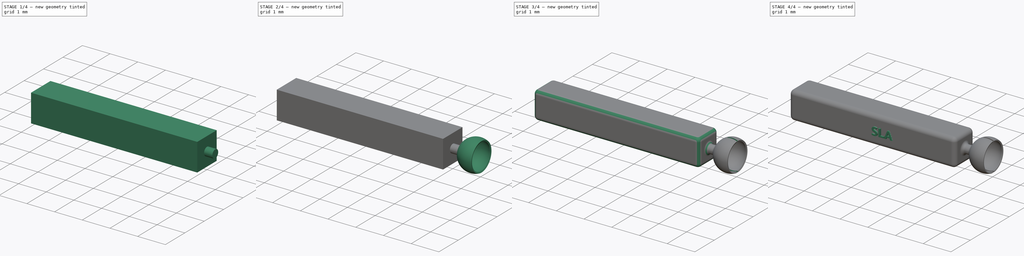
[diagram: build sequence overview — one tinted view per stage of 4, left to right]
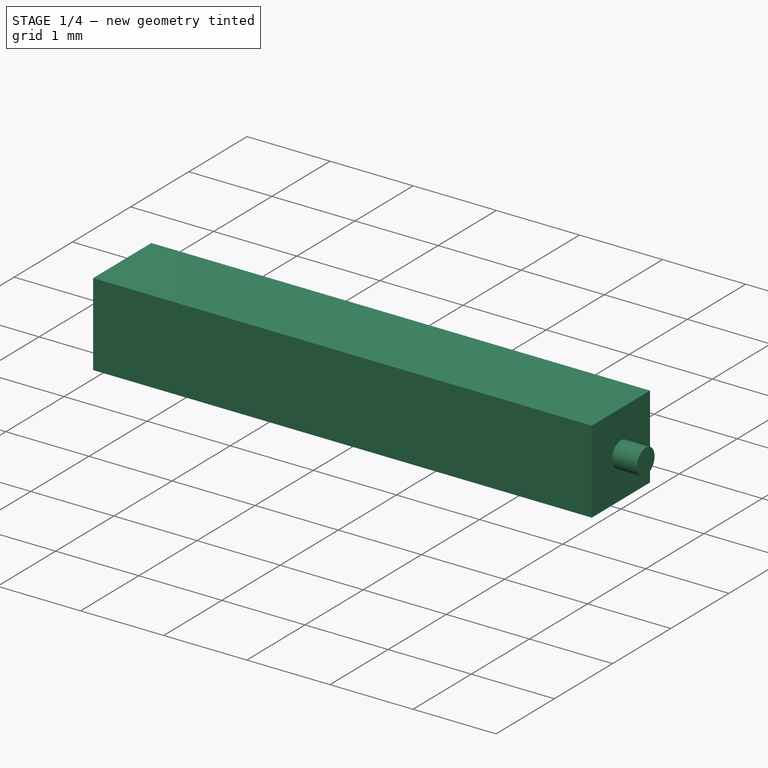
[diagram: stage 1 of 4 — iso view after this stage's code; geometry added in this stage tinted green]
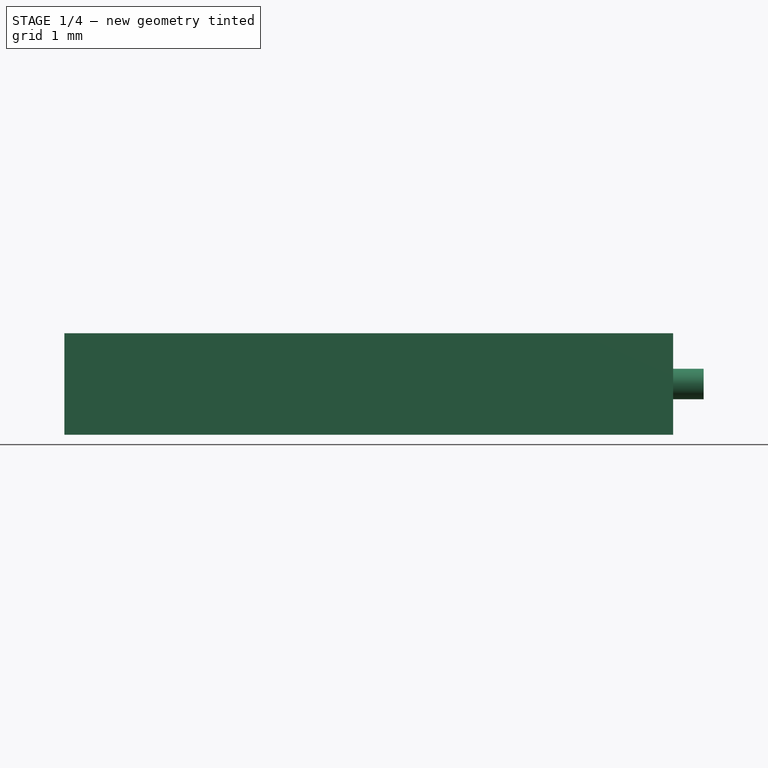
[diagram: stage 1 of 4 — front view after this stage's code; geometry added in this stage tinted green]
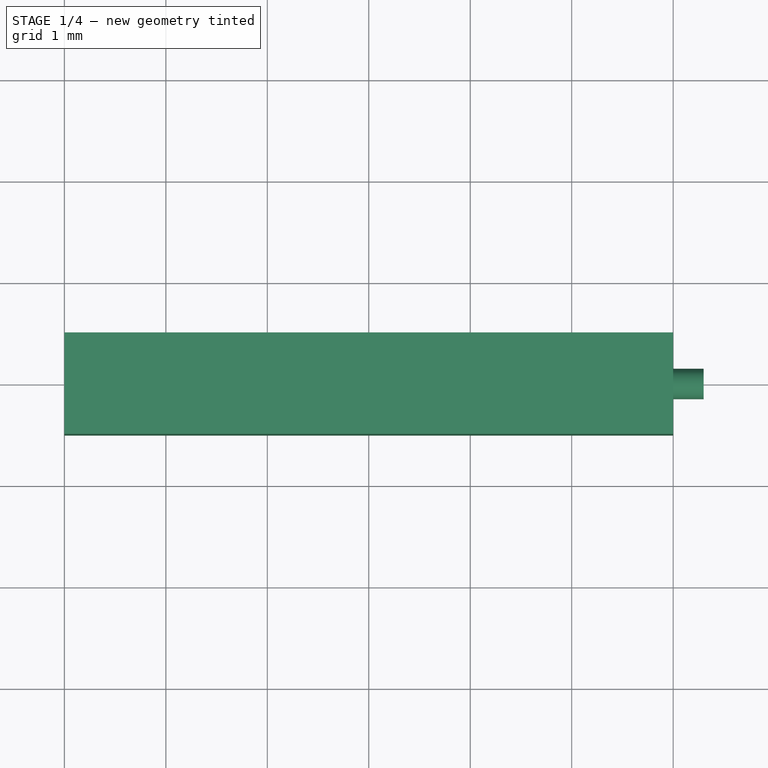
[diagram: stage 1 of 4 — top view after this stage's code; geometry added in this stage tinted green]
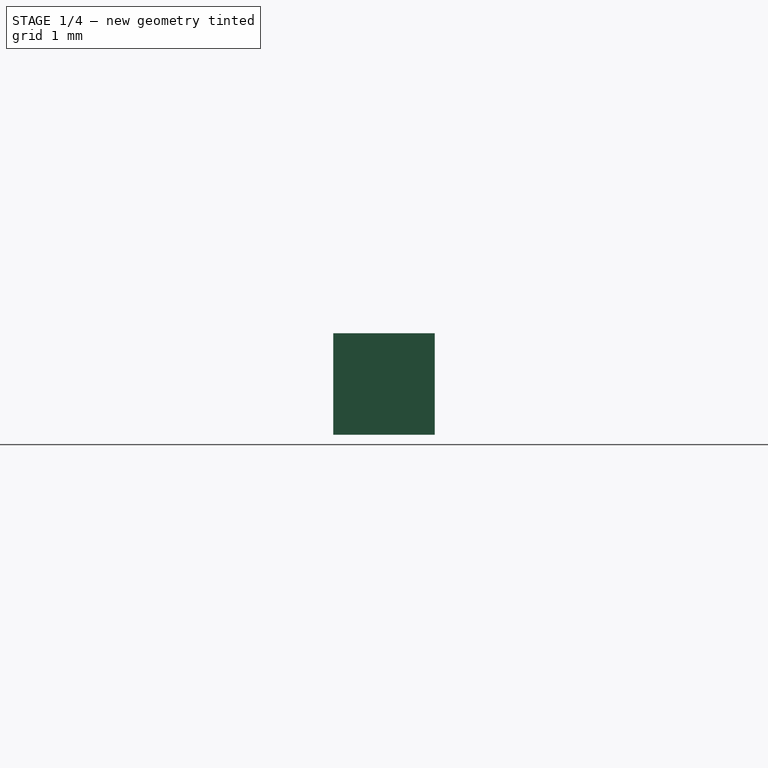
[diagram: stage 1 of 4 — right view after this stage's code; geometry added in this stage tinted green]
FCSTD DOCUMENT  (FreeCAD 0.20R29177 (Git))
Label: sla
License: All rights reserved
LicenseURL: http://en.wikipedia.org/wiki/All_rights_reserved
objects: Sketcher::SketchObject×5, PartDesign::Pad×3, PartDesign::Fillet×3, PartDesign::Plane×2, PartDesign::Line×2, Spreadsheet::Sheet×1, PartDesign::Revolution×1, PartDesign::Groove×1, PartDesign::Pocket×1, Part::Part2DObjectPython×1, PartDesign::Body×1
note: 29 computed .brp shape members not serialized (recipe doc carries the construction recipe); baked Part::Feature solids carry a one-line shape summary decoded from their .brp

FEATURE [Spreadsheet::Sheet] Spreadsheet
  cells = A2=Design Parameters; A3=RefLength; B3(RefLength)==1mm; A4=Length; B4(Length)==6 * RefLength; A5=Width; B5(Width)==RefLength; A6=Height; B6(Height)==RefLength; A7=BallJointDiam; B7(BallJointDiam)==1 * RefLength; A8=BallJointDiamMargin; B8(BallJointDiamMargin)==0.005 * BallJointDiam; A9=BallJointCupThickness; B9(BallJointCupThickness)==0.05 * RefLength; A10=BallJointCupDiam; B10(BallJointCupDiam)==BallJointDiam + 2 * BallJointDiamMargin; A11=BallJointConnLength; B11(BallJointConnLength)==0.3 * RefLength; A12=BallJointConnDiam; B12(BallJointConnDiam)==0.3 * RefLength; A13=BallJointConnDatumPlaneOffset; B13(BallJointConnDatumPlaneOffset)==0.5 * Length; A14=BallJointDatumPlaneOffset; B14(BallJointDatumPlaneOffset)==BallJointConnDatumPlaneOffset + BallJointConnLength + 0.5 * BallJointCupThickness + 0.5 * BallJointDiam; A15=BallJointCupRevolveCutAngle; B15(BallJointCupRevolveCutAngle)==135deg; A16=BallJointCuptRevolveCutMargin; B16(BallJointCuptRevolveCutMargin)==0.1 * RefLength; A17=BallJointCupRevolveCutLength; B17(BallJointCupRevolveCutLength)==0.5 * BallJointDiam + BallJointCupThickness + BallJointCuptRevolveCutMargin; A18=BallJointCupSlitWidth; B18(BallJointCupSlitWidth)==0.05 * RefLength; A19=BallJointCupSlitDepth; B19(BallJointCupSlitDepth)==0.1 * RefLength; C19=Depth past midline; A20=EdgeFilletRadius; B20(EdgeFilletRadius)==0.15 * RefLength; A21=BallJointConnFilletRadius; B21(BallJointConnFilletRadius)==0.1 * RefLength; A22=BallJointCupFilletRadius; B22(BallJointCupFilletRadius)==0.012 * RefLength; A23=LabelString; B23(LabelString)=SLA; A24=LabelPadHeight; B24(LabelPadHeight)==0.05 * RefLength
FEATURE [Sketcher::SketchObject] Sketch  label="MainBeamSketch"
  FullyConstrained = true
  MapMode = 5
  Support = -> [XY_Plane]
  expr: Constraints[10] = Spreadsheet.Width
  expr: Constraints[9] = Spreadsheet.Length
  sketch-geometry (4):
    g0: LineSegment StartX=-3 StartY=0.5 StartZ=0 EndX=3 EndY=0.5 EndZ=0
    g1: LineSegment StartX=3 StartY=0.5 StartZ=0 EndX=3 EndY=-0.5 EndZ=0
    g2: LineSegment StartX=3 StartY=-0.5 StartZ=0 EndX=-3 EndY=-0.5 EndZ=0
    g3: LineSegment StartX=-3 StartY=-0.5 StartZ=0 EndX=-3 EndY=0.5 EndZ=0
  constraints (11):
    c: Coincident(g0,g1)
    c: Coincident(g1,g2)
    c: Coincident(g2,g3)
    c: Coincident(g3,g0)
    c: Horizontal(g0)
    c: Horizontal(g2)
    c: Vertical(g1)
    c: Vertical(g3)
    c: Symmetric(g0,g1,g-1)
    c: DistanceX(g2,g2) = 6
    c: DistanceY(g1,g1) = 1
FEATURE [PartDesign::Pad] Pad  label="MainBeamPad"
  Direction = (0,0,1)
  Length = 1
  Length2 = 10
  Midplane = true
  Profile = -> Sketch
  ReferenceAxis = -> Sketch [N_Axis]
  Type = 0
  expr: Length = Spreadsheet.Height
FEATURE [PartDesign::Plane] DatumPlane  label="BallJointConnDatumPlane"
  AttachmentOffset = pos=(0,0,3) rot=(0,0,1;0rad)
  Length = 60
  MapMode = 5
  Placement = pos=(3,-7e-16,7e-16) rot=(0.57735,0.57735,0.57735;2.0944rad)
  ResizeMode = 0
  Support = -> [YZ_Plane]
  Width = 60
  expr: .AttachmentOffset.Base.z = Spreadsheet.BallJointConnDatumPlaneOffset
FEATURE [Sketcher::SketchObject] Sketch001  label="BallJointConnSketch"
  FullyConstrained = true
  MapMode = 5
  Placement = pos=(3,-7e-16,7e-16) rot=(0.57735,0.57735,0.57735;2.0944rad)
  Support = -> [DatumPlane]
  expr: Constraints[1] = Spreadsheet.BallJointConnDiam
  sketch-geometry (1):
    g0: Circle CenterX=0 CenterY=0 CenterZ=0 NormalX=0 NormalY=0 NormalZ=1 AngleXU=0 Radius=0.15
  constraints (2):
    c: Coincident(g0,g-1)
    c: Diameter(g0) = 0.3
FEATURE [PartDesign::Pad] Pad001  label="BallJointConnPad"
  BaseFeature = -> Pad
  Direction = (1,-1e-16,1e-16)
  Length = 0.3
  Length2 = 10
  Profile = -> Sketch001
  ReferenceAxis = -> Sketch001 [N_Axis]
  Type = 0
  expr: Length = Spreadsheet.BallJointConnLength
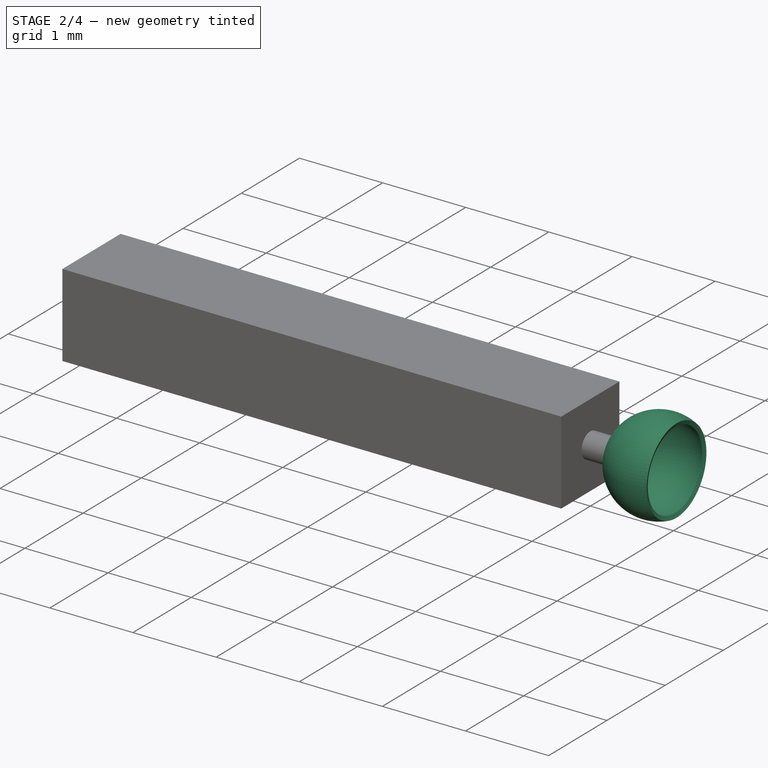
[diagram: stage 2 of 4 — iso view after this stage's code; geometry added in this stage tinted green]
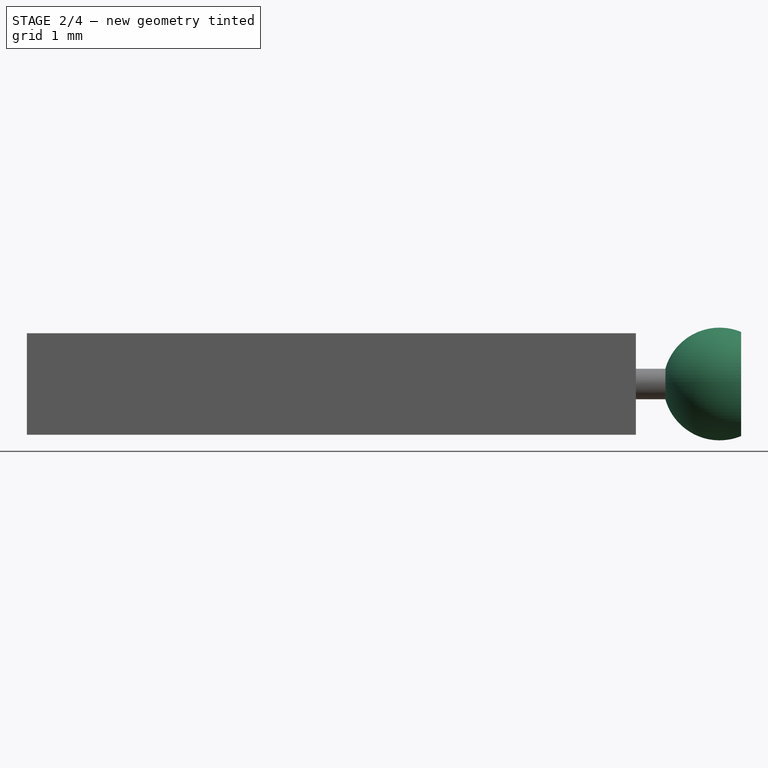
[diagram: stage 2 of 4 — front view after this stage's code; geometry added in this stage tinted green]
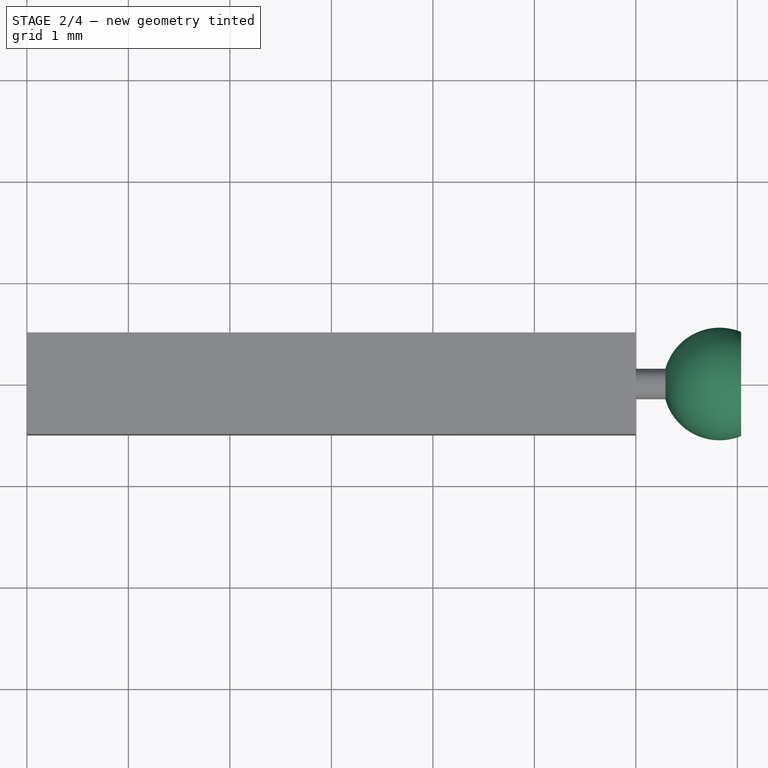
[diagram: stage 2 of 4 — top view after this stage's code; geometry added in this stage tinted green]
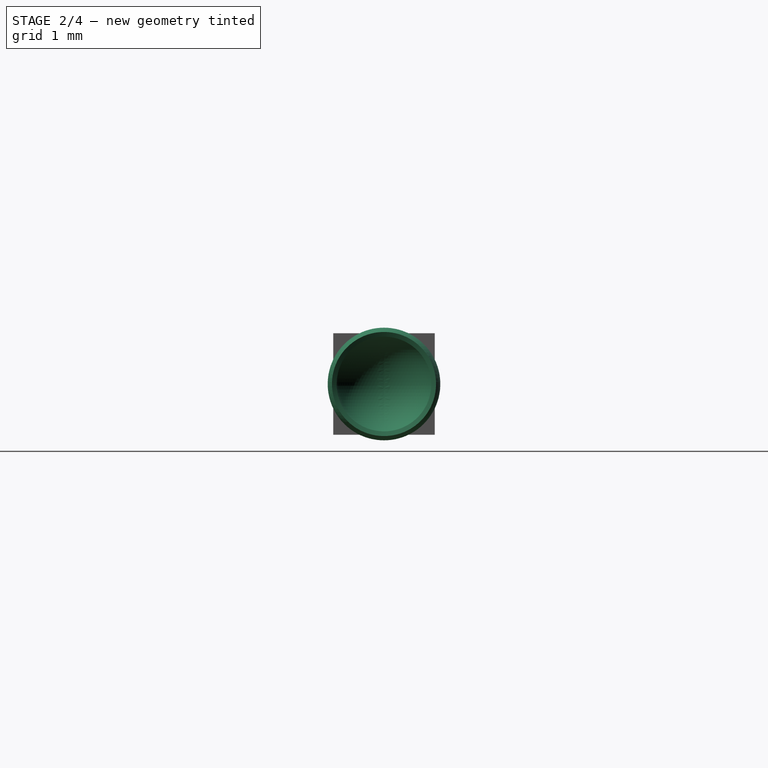
[diagram: stage 2 of 4 — right view after this stage's code; geometry added in this stage tinted green]
FEATURE [PartDesign::Plane] DatumPlane001  label="BallJointDatumPlane"
  AttachmentOffset = pos=(0,0,3.825) rot=(0,1,0;1.5708rad)
  Length = 60
  MapMode = 5
  Placement = pos=(3.825,-8e-16,8e-16) rot=(0,0.707107,0.707107;3.14159rad)
  ResizeMode = 0
  Support = -> [YZ_Plane]
  Width = 60
  expr: .AttachmentOffset.Base.z = Spreadsheet.BallJointDatumPlaneOffset
FEATURE [Sketcher::SketchObject] Sketch002  label="BallJointCutSketch"
  FullyConstrained = true
  MapMode = 5
  Placement = pos=(3.825,-8e-16,8e-16) rot=(0,0.707107,0.707107;3.14159rad)
  Support = -> [DatumPlane001]
  expr: Constraints[14] = Spreadsheet.BallJointCupDiam
  sketch-geometry (6):
    g0: ArcOfCircle CenterX=-1e-16 CenterY=0 CenterZ=0 NormalX=0 NormalY=0 NormalZ=1 AngleXU=0 Radius=0.555 StartAngle=4.71239 EndAngle=7.85398
    g1: ArcOfCircle CenterX=-1e-16 CenterY=0 CenterZ=0 NormalX=0 NormalY=0 NormalZ=1 AngleXU=0 Radius=0.505 StartAngle=4.71239 EndAngle=7.85398
    g2: LineSegment StartX=-1e-16 StartY=0.505 StartZ=0 EndX=-1e-16 EndY=0 EndZ=0
    g3: LineSegment StartX=-1e-16 StartY=0 StartZ=0 EndX=-1e-16 EndY=-0.505 EndZ=0
    g4: LineSegment StartX=-1e-16 StartY=0.555 StartZ=0 EndX=-1e-16 EndY=0.505 EndZ=0
    g5: LineSegment StartX=-1e-16 StartY=-0.505 StartZ=0 EndX=-1e-16 EndY=-0.555 EndZ=0
  constraints (16):
    c: Coincident(g-1,g0)
    c: Coincident(g1,g0)
    c: Vertical(g2)
    c: Coincident(g2,g1)
    c: Coincident(g2,g0)
    c: Vertical(g3)
    c: Coincident(g3,g0)
    c: Coincident(g3,g1)
    c: Coincident(g4,g0)
    c: Coincident(g4,g1)
    c: Vertical(g4)
    c: Vertical(g5)
    c: Coincident(g5,g1)
    c: Coincident(g5,g0)
    c: DistanceY(g1,g1) = 1.01
    c: DistanceY(g4,g4) = 0.05
FEATURE [PartDesign::Line] DatumLine  label="BallJointCupDatumLine"
  AttacherType = Attacher::AttachEngineLine
  Length = 20
  MapMode = 29
  Placement = pos=(3.825,-8e-16,9e-16) rot=(0,1,0;3.14159rad)
  ResizeMode = 0
  Support = -> [Sketch002]
FEATURE [PartDesign::Revolution] Revolution  label="BallJointCuptRevolution"
  Angle = 360
  Axis = (4e-16,2e-16,-1)
  Base = (3.825,-8e-16,9e-16)
  BaseFeature = -> Pad001
  Profile = -> Sketch002
  ReferenceAxis = -> DatumLine
  Reversed = true
FEATURE [Sketcher::SketchObject] Sketch003  label="BallJointCutSketch001"
  FullyConstrained = true
  MapMode = 5
  Placement = pos=(3.825,-8e-16,8e-16) rot=(0,0.707107,0.707107;3.14159rad)
  Support = -> [DatumPlane001]
  expr: Constraints[6] = Spreadsheet.BallJointCupRevolveCutAngle * 0.5
  expr: Constraints[7] = Spreadsheet.BallJointCupRevolveCutLength
  sketch-geometry (3):
    g0: LineSegment StartX=-0.248744 StartY=0 StartZ=0 EndX=0 EndY=0 EndZ=0
    g1: LineSegment StartX=-0.248744 StartY=0.600522 StartZ=0 EndX=0 EndY=0 EndZ=0
    g2: LineSegment StartX=-0.248744 StartY=0.600522 StartZ=0 EndX=-0.248744 EndY=0 EndZ=0
  constraints (8):
    c: Horizontal(g0)
    c: Coincident(g0,g-1)
    c: Coincident(g0,g1)
    c: Vertical(g2)
    c: Coincident(g2,g1)
    c: Coincident(g2,g0)
    c: Angle(g1,g0,g0) = 1.1781
    c: Distance(g1) = 0.65
FEATURE [PartDesign::Line] DatumLine001  label="BallJointCutGrooveDatumLine"
  AttacherType = Attacher::AttachEngineLine
  Length = 20
  MapMode = 29
  Placement = pos=(3.825,-8e-16,8e-16) rot=(-0.57735,0.57735,0.57735;4.18879rad)
  ResizeMode = 0
  Support = -> [Sketch003]
FEATURE [PartDesign::Groove] Groove  label="BallJointCuptGroove"
  Angle = 360
  Axis = (-1,2e-16,-2e-16)
  Base = (3.825,-8e-16,8e-16)
  BaseFeature = -> Revolution
  Profile = -> Sketch003
  ReferenceAxis = -> DatumLine001
  Reversed = true
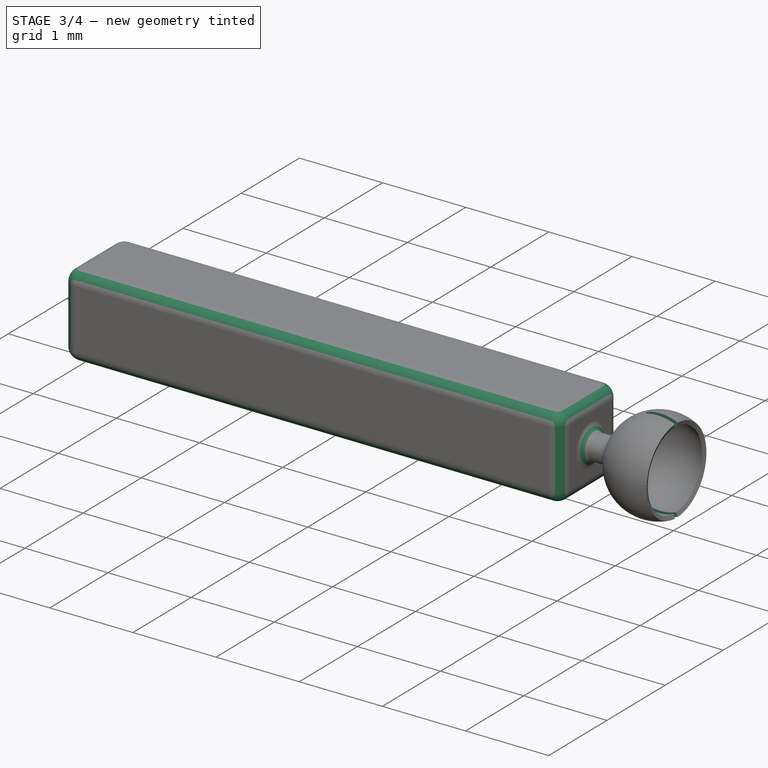
[diagram: stage 3 of 4 — iso view after this stage's code; geometry added in this stage tinted green]
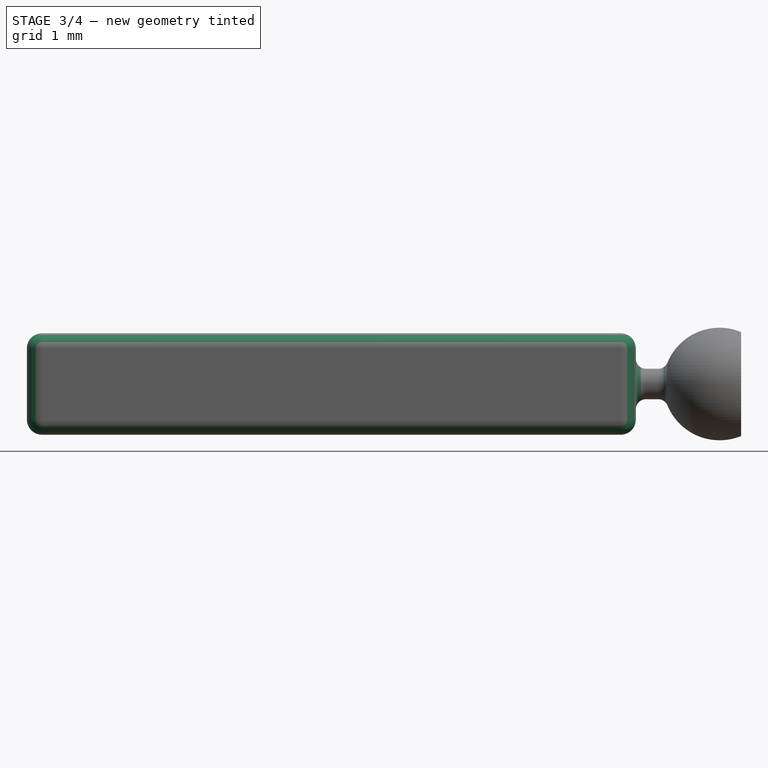
[diagram: stage 3 of 4 — front view after this stage's code; geometry added in this stage tinted green]
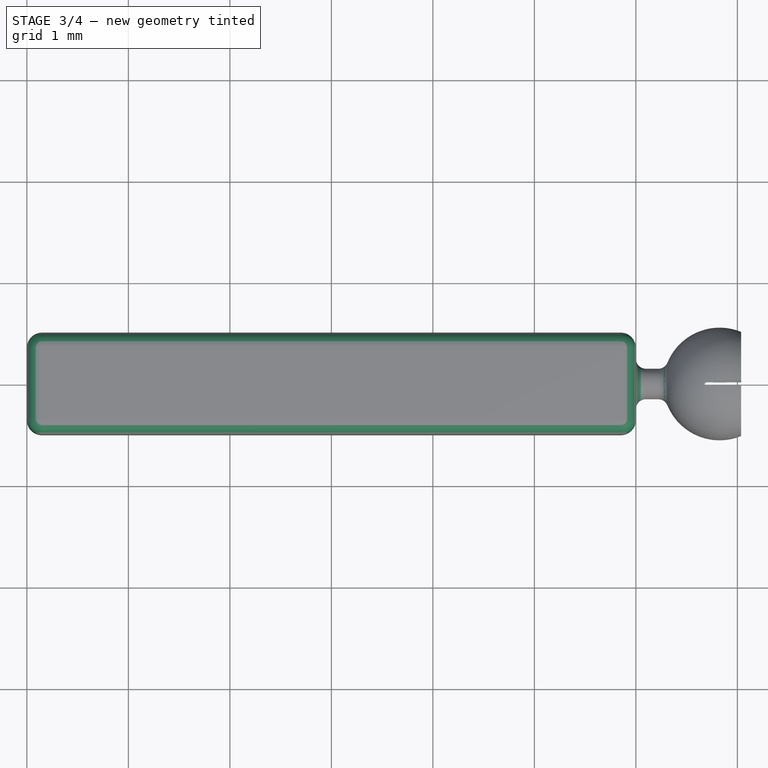
[diagram: stage 3 of 4 — top view after this stage's code; geometry added in this stage tinted green]
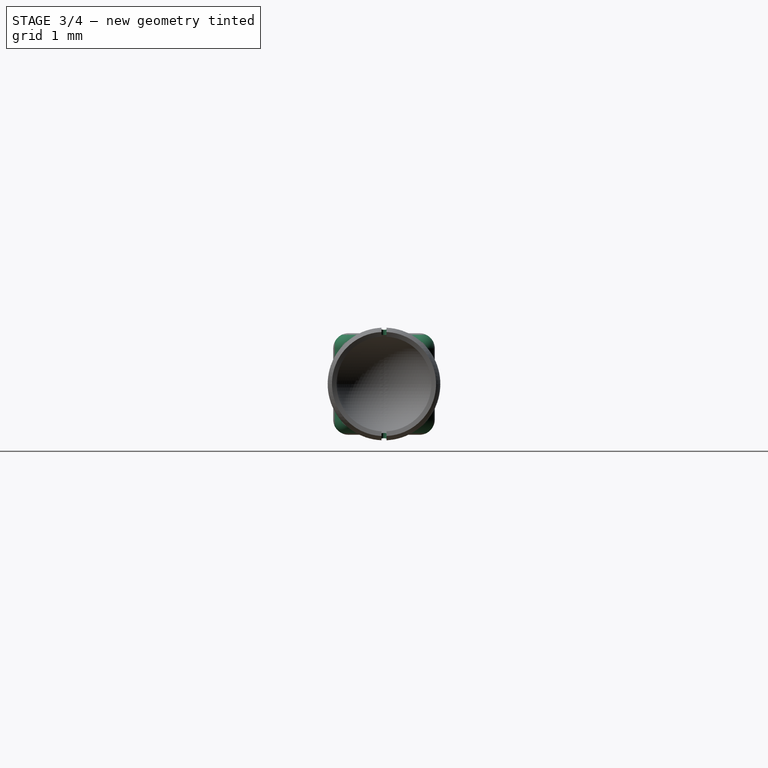
[diagram: stage 3 of 4 — right view after this stage's code; geometry added in this stage tinted green]
FEATURE [Sketcher::SketchObject] Sketch004  label="BallJointCupSlitSketch"
  FullyConstrained = true
  MapMode = 5
  Support = -> [XY_Plane]
  expr: Constraints[23] = Spreadsheet.BallJointCupSlitWidth
  expr: Constraints[24] = Spreadsheet.BallJointCupSlitDepth
  expr: Constraints[31] = Spreadsheet.BallJointCupDiam
  expr: Constraints[3] = Spreadsheet.BallJointDatumPlaneOffset
  sketch-geometry (12):
    g0: GeomPoint X=3.825 Y=-0.025 Z=0
    g1: LineSegment StartX=3.825 StartY=-0.025 StartZ=0 EndX=3.825 EndY=0 EndZ=0
    g2: LineSegment StartX=3.825 StartY=0 StartZ=0 EndX=3.825 EndY=0.025 EndZ=0
    g3: LineSegment StartX=3.7 StartY=0.025 StartZ=0 EndX=3.825 EndY=0.025 EndZ=0
    g4: LineSegment StartX=3.825 StartY=0.025 StartZ=0 EndX=4.835 EndY=0.025 EndZ=0
    g5: LineSegment StartX=4.835 StartY=0.025 StartZ=0 EndX=4.835 EndY=-0.025 EndZ=0
    g6: LineSegment StartX=4.835 StartY=-0.025 StartZ=0 EndX=3.825 EndY=-0.025 EndZ=0
    g7: LineSegment StartX=3.825 StartY=-0.025 StartZ=0 EndX=3.7 EndY=-0.025 EndZ=0
    g8: ArcOfCircle CenterX=3.7 CenterY=-1.76357e-11 CenterZ=0 NormalX=0 NormalY=0 NormalZ=1 AngleXU=0 Radius=0.025 StartAngle=1.5708 EndAngle=4.71239
    g9: LineSegment StartX=3.725 StartY=-1.76357e-11 StartZ=0 EndX=3.7 EndY=-1.76357e-11 EndZ=0
    g10: LineSegment StartX=3.7 StartY=0.025 StartZ=0 EndX=3.7 EndY=-1.76357e-11 EndZ=0
    g11: LineSegment StartX=3.7 StartY=-1.76357e-11 StartZ=0 EndX=3.7 EndY=-0.025 EndZ=0
  constraints (32):
    c: Coincident(g1,g2)
    c: Equal(g1,g2)
    c: Coincident(g1,g0)
    c: DistanceX(g-1,g1) = 3.825
    c: PointOnObject(g1,g-1)
    c: Vertical(g1)
    c: Vertical(g2)
    c: Coincident(g3,g2)
    c: Horizontal(g3)
    c: Coincident(g3,g4)
    c: Horizontal(g4)
    c: Coincident(g4,g5)
    c: Vertical(g5)
    c: Coincident(g5,g6)
    c: Coincident(g6,g0)
    c: Horizontal(g6)
    c: Coincident(g6,g7)
    c: Horizontal(g7)
    c: Coincident(g8,g3)
    c: Coincident(g8,g7)
    c: Coincident(g9,g8)
    c: Horizontal(g9)
    c: PointOnObject(g9,g8)
    c: DistanceY(g5,g4) = 0.05
    c: DistanceX(g9,g1) = 0.1
    c: Coincident(g8,g10)
    c: Coincident(g8,g11)
    c: Coincident(g10,g3)
    c: Vertical(g10)
    c: Coincident(g11,g7)
    c: Vertical(g11)
    c: DistanceX(g6,g6) = 1.01
FEATURE [PartDesign::Pocket] Pocket  label="BallJointCupSlitPocket"
  BaseFeature = -> Groove
  Direction = (0,0,-1)
  Length = 5
  Length2 = 5
  Midplane = true
  Profile = -> Sketch004
  ReferenceAxis = -> Sketch004 [N_Axis]
  Type = 1
FEATURE [PartDesign::Fillet] Fillet  label="MainBeamEdgeFillet"
  Base = -> Pocket [Face1,Face6,Face5,Face4]
  BaseFeature = -> Pocket
  Radius = 0.15
  SupportTransform = false
  UseAllEdges = false
  expr: Radius = Spreadsheet.EdgeFilletRadius
FEATURE [PartDesign::Fillet] Fillet001  label="BallJointConnFillet"
  Base = -> Fillet [Edge37,Edge57]
  BaseFeature = -> Fillet
  Radius = 0.1
  SupportTransform = false
  UseAllEdges = false
  expr: Radius = Spreadsheet.BallJointConnFilletRadius
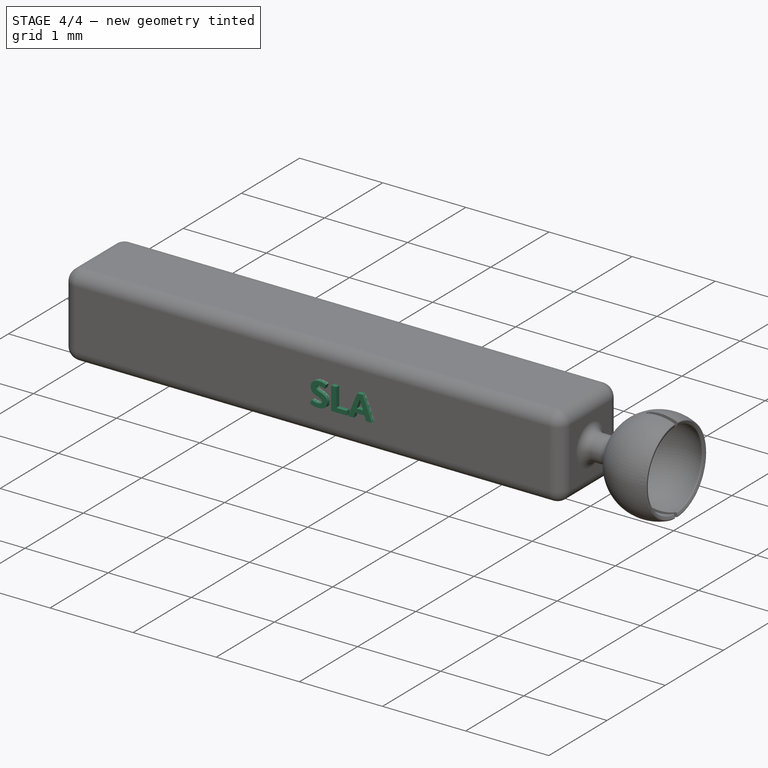
[diagram: stage 4 of 4 — iso view after this stage's code; geometry added in this stage tinted green]
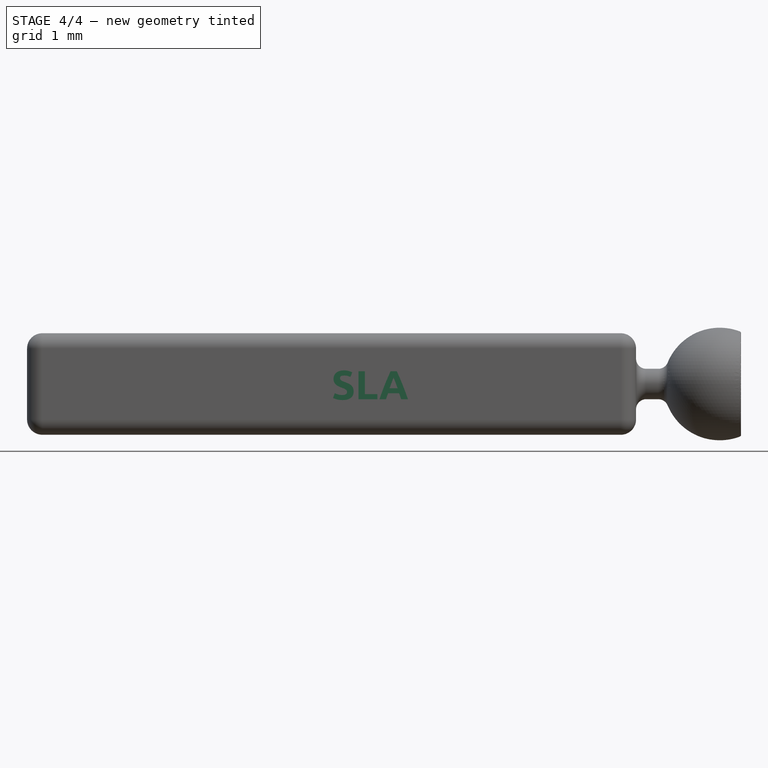
[diagram: stage 4 of 4 — front view after this stage's code; geometry added in this stage tinted green]
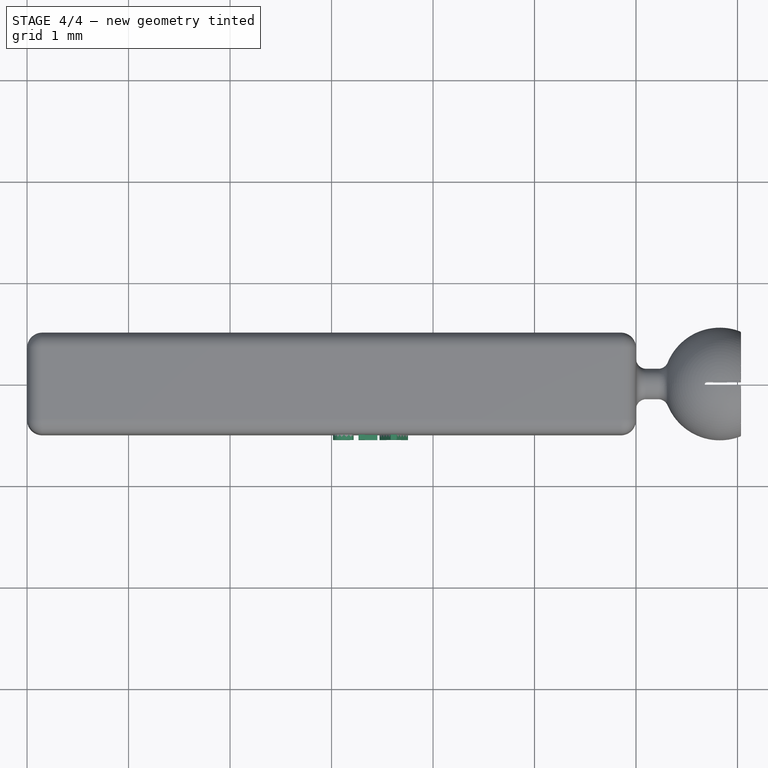
[diagram: stage 4 of 4 — top view after this stage's code; geometry added in this stage tinted green]
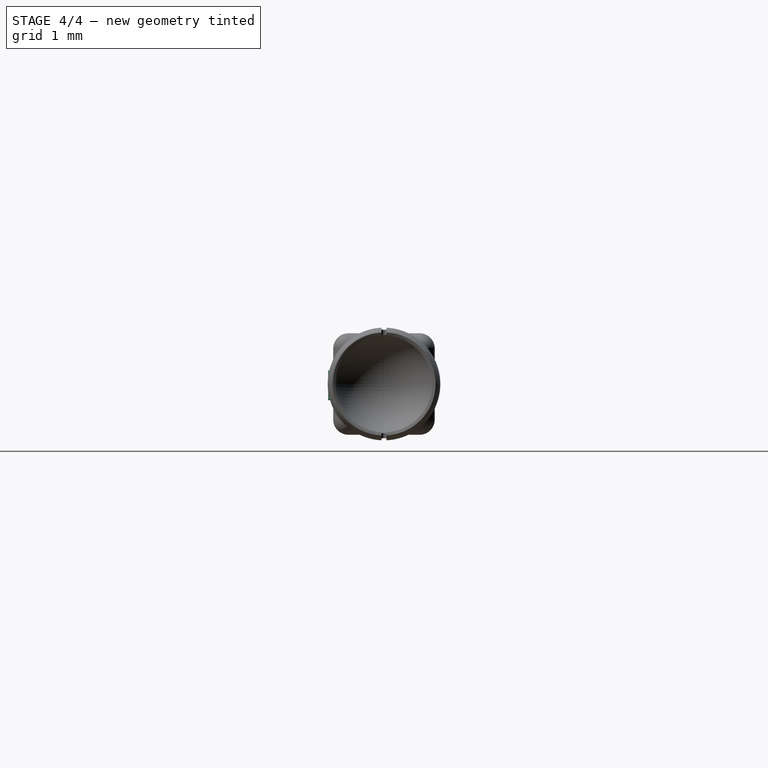
[diagram: stage 4 of 4 — right view after this stage's code; geometry added in this stage tinted green]
FEATURE [PartDesign::Fillet] Fillet002  label="BallJointCupFillet"
  Base = -> Fillet001 [Edge72,Edge99,Edge110,Edge80]
  BaseFeature = -> Fillet001
  Radius = 0.012
  SupportTransform = false
  UseAllEdges = false
  expr: Radius = Spreadsheet.BallJointCupFilletRadius
FEATURE [Part::Part2DObjectPython] ShapeString  label="LabelShapeString"  # Draft 2D object (typed FeaturePython)
  FontFile = ./font/Ubuntu-B.ttf
  MakeFace = true
  Placement = pos=(0,-0.5,-0.15) rot=(1,0,0;1.5708rad)
  Size = 0.15
  String = SLA
  Tracking = 0
  expr: .Placement.Base.x = Spreadsheet.RefLength * 0
  expr: .Placement.Base.y = Spreadsheet.Width * -0.5
  expr: .Placement.Base.z = Spreadsheet.RefLength * -0.15
  expr: String = Spreadsheet.LabelString
FEATURE [PartDesign::Pad] Pad002  label="LabelPad"
  BaseFeature = -> Fillet002
  Direction = (0,-1,2e-16)
  Length = 0.05
  Length2 = 10
  Profile = -> ShapeString
  ReferenceAxis = -> ShapeString [N_Axis]
  Type = 0
  expr: Length = Spreadsheet.LabelPadHeight
FEATURE [PartDesign::Body] Body
  Group = -> [Sketch,Pad,DatumPlane,Sketch001,Pad001,DatumPlane001,Sketch002,DatumLine,Revolution,Sketch003,DatumLine001,Groove,Sketch004,Pocket,Fillet,Fillet001,Fillet002,ShapeString,Pad002]
  Origin = -> Origin
  Tip = -> Pad002
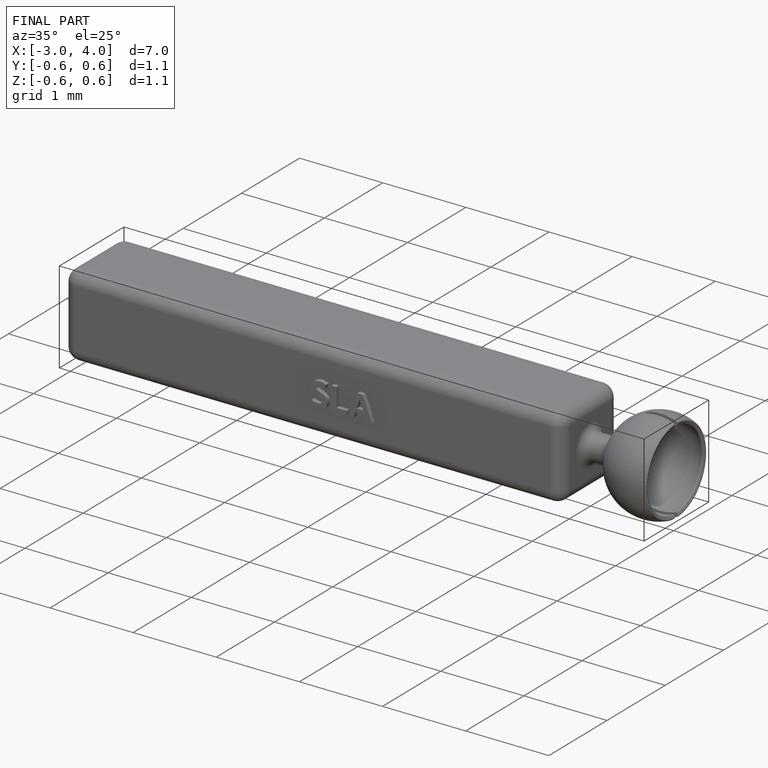
[diagram: finished part — iso view with bounding-box wireframe]
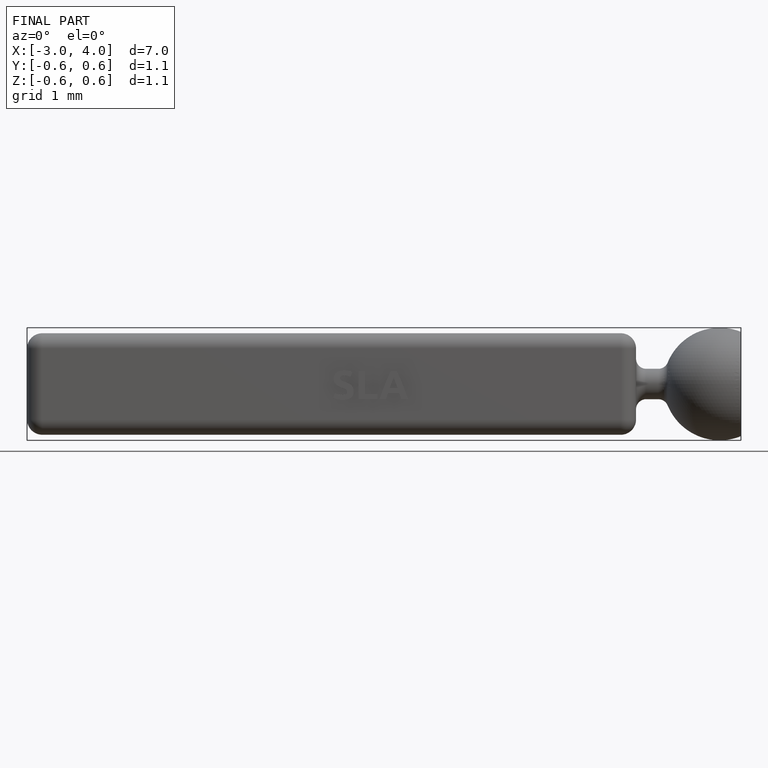
[diagram: finished part — front view with bounding-box wireframe]
